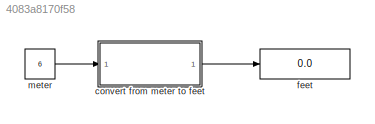
MODEL slx_4083a8170f58
KIND model
CONFIG AbsTol = auto
CONFIG EnableMultiTasking = off
CONFIG FixedStep = auto
CONFIG MaxStep = auto
CONFIG MinStep = auto
CONFIG RelTol = 1e-3
CONFIG SampleTimeConstraint = Unconstrained
CONFIG SolverName = VariableStepAuto
CONFIG StartTime = 0.0
CONFIG StopTime = 10.0
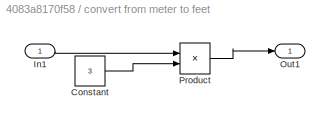
BLOCK [SubSystem] convert from meter to feet
  Ports = [1, 1]
  RequestExecContextInheritance = off
BLOCK [Constant] convert from meter to feet/Constant
  Value = 3
BLOCK [Inport] convert from meter to feet/In1
BLOCK [Outport] convert from meter to feet/Out1
BLOCK [Product] convert from meter to feet/Product
  Ports = [2, 1]
BLOCK [Display] feet
  Decimation = 1
  Ports = [1]
BLOCK [Constant] meter
  Value = 6
LINE convert from meter to feet/Constant:1 -> convert from meter to feet/Product:2
LINE convert from meter to feet/In1:1 -> convert from meter to feet/Product:1
LINE convert from meter to feet/Product:1 -> convert from meter to feet/Out1:1
LINE convert from meter to feet:1 -> feet:1
LINE meter:1 -> convert from meter to feet:1
